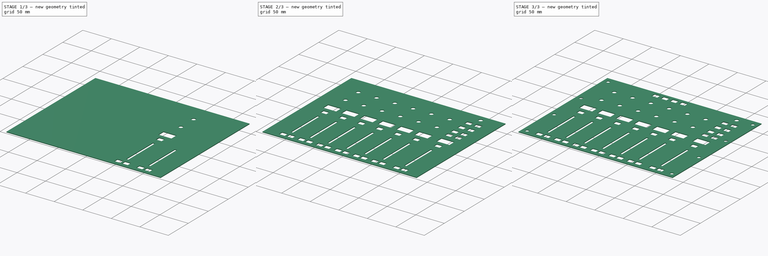
[diagram: build sequence overview — one tinted view per stage of 3, left to right]
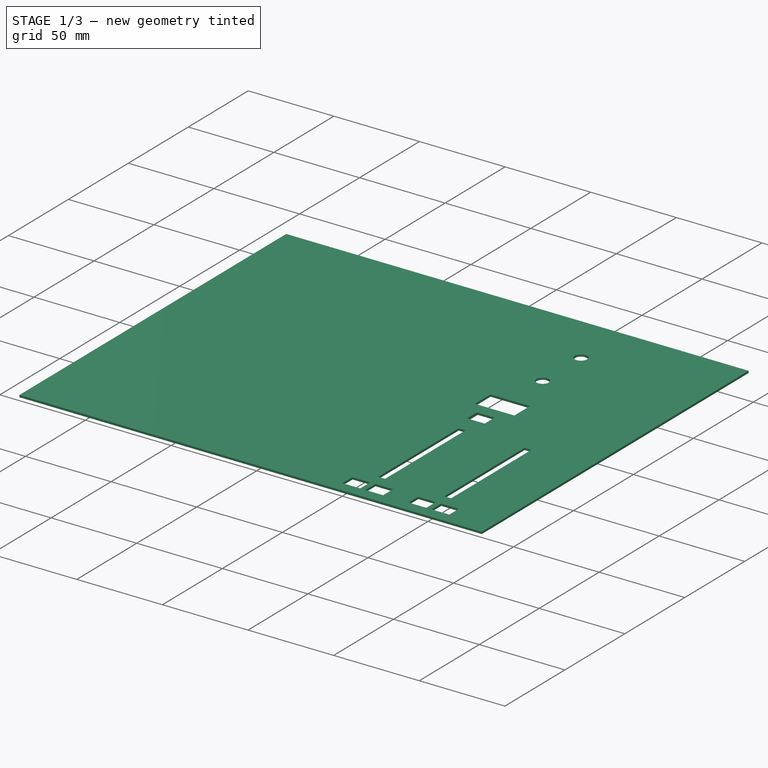
[diagram: stage 1 of 3 — iso view after this stage's code; geometry added in this stage tinted green]
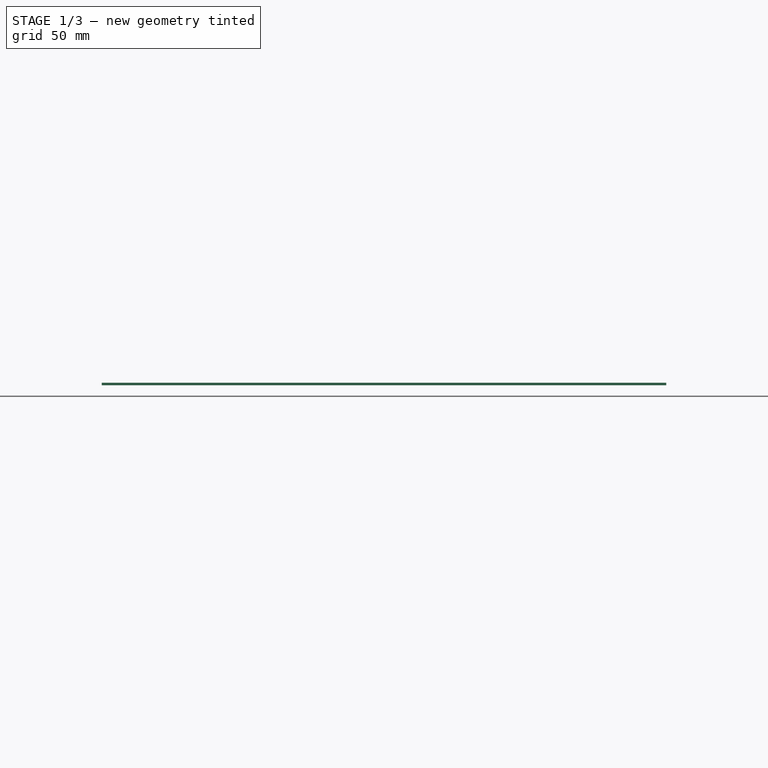
[diagram: stage 1 of 3 — front view after this stage's code; geometry added in this stage tinted green]
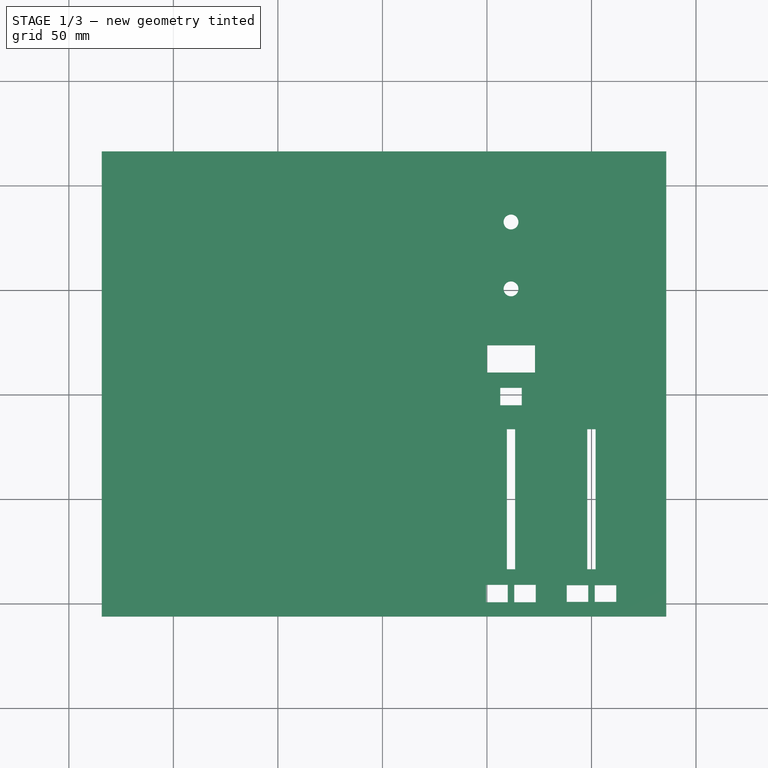
[diagram: stage 1 of 3 — top view after this stage's code; geometry added in this stage tinted green]
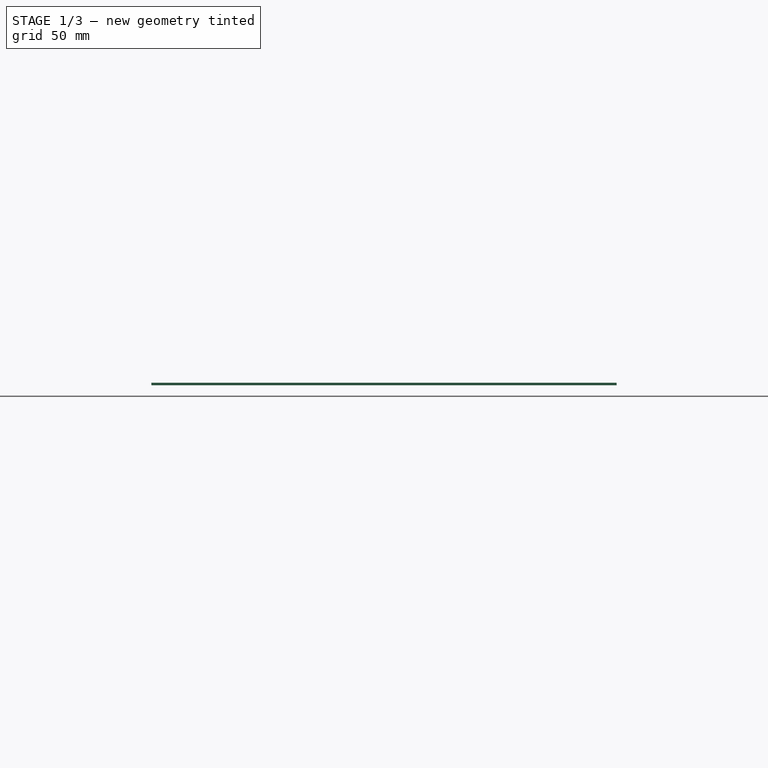
[diagram: stage 1 of 3 — right view after this stage's code; geometry added in this stage tinted green]
FCSTD DOCUMENT  (FreeCAD 0.18R16146 (Git))
Label: Faceplate
License: All rights reserved
LicenseURL: http://en.wikipedia.org/wiki/All_rights_reserved
objects: Sketcher::SketchObject×5, PartDesign::Pocket×3, PartDesign::Pad×1, PartDesign::LinearPattern×1, PartDesign::Hole×1, PartDesign::Body×1
note: 17 computed .brp shape members not serialized (recipe doc carries the construction recipe); baked Part::Feature solids carry a one-line shape summary decoded from their .brp

FEATURE [Sketcher::SketchObject] Sketch
  MapMode = 5
  Support = -> [XY_Plane]
  sketch-geometry (28):
    g0: LineSegment [constr] StartX=-215.25 StartY=162.4 StartZ=0 EndX=14.75 EndY=162.4 EndZ=0
    g1: LineSegment [constr] StartX=14.75 StartY=162.4 StartZ=0 EndX=14.75 EndY=-52.1 EndZ=0
    g2: LineSegment [constr] StartX=14.75 StartY=-52.1 StartZ=0 EndX=-215.25 EndY=-52.1 EndZ=0
    g3: LineSegment [constr] StartX=-215.25 StartY=-52.1 StartZ=0 EndX=-215.25 EndY=162.4 EndZ=0
    g4: LineSegment StartX=2 StartY=33.5 StartZ=0 EndX=-2 EndY=33.5 EndZ=0
    g5: LineSegment StartX=-2 StartY=33.5 StartZ=0 EndX=-2 EndY=-33.5 EndZ=0
    g6: LineSegment StartX=-2 StartY=-33.5 StartZ=0 EndX=2 EndY=-33.5 EndZ=0
    g7: LineSegment StartX=2 StartY=-33.5 StartZ=0 EndX=2 EndY=33.5 EndZ=0
    g8: LineSegment StartX=-11.85 StartY=-41.1 StartZ=0 EndX=-1.55 EndY=-41.1 EndZ=0
    g9: LineSegment StartX=-1.55 StartY=-41.1 StartZ=0 EndX=-1.55 EndY=-49.1 EndZ=0
    g10: LineSegment StartX=-1.55 StartY=-49.1 StartZ=0 EndX=-11.85 EndY=-49.1 EndZ=0
    g11: LineSegment StartX=-11.85 StartY=-49.1 StartZ=0 EndX=-11.85 EndY=-41.1 EndZ=0
    g12: LineSegment StartX=1.55 StartY=-41.1 StartZ=0 EndX=11.85 EndY=-41.1 EndZ=0
    g13: LineSegment StartX=11.85 StartY=-41.1 StartZ=0 EndX=11.85 EndY=-49.1 EndZ=0
    g14: LineSegment StartX=11.85 StartY=-49.1 StartZ=0 EndX=1.55 EndY=-49.1 EndZ=0
    g15: LineSegment StartX=1.55 StartY=-49.1 StartZ=0 EndX=1.55 EndY=-41.1 EndZ=0
    g16: GeomPoint X=-6.7 Y=-45.1 Z=0
    g17: GeomPoint X=6.7 Y=-45.1 Z=0
    g18: LineSegment [constr] StartX=-6.7 StartY=-45.1 StartZ=0 EndX=0 EndY=-45.1 EndZ=0
    g19: LineSegment [constr] StartX=6.7 StartY=-45.1 StartZ=0 EndX=0 EndY=-45.1 EndZ=0
    g20: LineSegment [constr] StartX=0 StartY=0 StartZ=0 EndX=0 EndY=-45.1 EndZ=0
    g21: LineSegment StartX=-234.25 StartY=166.4 StartZ=0 EndX=35.75 EndY=166.4 EndZ=0
    g22: LineSegment StartX=35.75 StartY=166.4 StartZ=0 EndX=35.75 EndY=-56.1 EndZ=0
    g23: LineSegment StartX=35.75 StartY=-56.1 StartZ=0 EndX=-234.25 EndY=-56.1 EndZ=0
    g24: LineSegment StartX=-234.25 StartY=-56.1 StartZ=0 EndX=-234.25 EndY=166.4 EndZ=0
    g25: LineSegment [constr] StartX=-215.25 StartY=-52.1 StartZ=0 EndX=-215.25 EndY=-56.1 EndZ=0
    g26: LineSegment [constr] StartX=14.75 StartY=-52.1 StartZ=0 EndX=14.75 EndY=-56.1 EndZ=0
    g27: LineSegment [constr] StartX=-215.25 StartY=162.4 StartZ=0 EndX=-215.25 EndY=166.4 EndZ=0
  constraints (77):
    c: Coincident(g0,g1)
    c: Coincident(g1,g2)
    c: Coincident(g2,g3)
    c: Coincident(g3,g0)
    c: Horizontal(g0)
    c: Horizontal(g2)
    c: Vertical(g1)
    c: Vertical(g3)
    c: Coincident(g4,g5)
    c: Coincident(g5,g6)
    c: Coincident(g6,g7)
    c: Coincident(g7,g4)
    c: Horizontal(g4)
    c: Horizontal(g6)
    c: Vertical(g5)
    c: Vertical(g7)
    c: Symmetric(g4,g6,g-1)
    c: DistanceY(g7,g7) = 67
    c: DistanceX(g4,g4) = 4
    c: DistanceX(g0,g0) = 230
    c: Coincident(g8,g9)
    c: Coincident(g9,g10)
    c: Coincident(g10,g11)
    c: Coincident(g11,g8)
    c: Horizontal(g8)
    c: Horizontal(g10)
    c: Vertical(g9)
    c: Vertical(g11)
    c: Coincident(g12,g13)
    c: Coincident(g13,g14)
    c: Coincident(g14,g15)
    c: Coincident(g15,g12)
    c: Horizontal(g12)
    c: Horizontal(g14)
    c: Vertical(g13)
    c: Vertical(g15)
    c: DistanceX(g12,g12) = 10.3
    c: DistanceY(g15,g15) = 8
    c: Equal(g8,g12)
    c: Equal(g15,g9)
    c: Symmetric(g12,g13,g17)
    c: Symmetric(g8,g9,g16)
    c: Coincident(g18,g16)
    c: PointOnObject(g18,g-2)
    c: Horizontal(g18)
    c: Coincident(g19,g17)
    c: Coincident(g19,g18)
    c: Horizontal(g19)
    c: Equal(g19,g18)
    c: DistanceY(g17,g-1) = 45.1
    c: DistanceX(g16,g17) = 13.4
    c: DistanceY(g1,g17) = 7
    c: Coincident(g20,g-1)
    c: Coincident(g20,g18)
    c: Coincident(g21,g22)
    c: Coincident(g22,g23)
    c: Coincident(g23,g24)
    c: Coincident(g24,g21)
    c: Horizontal(g21)
    c: Horizontal(g23)
    c: Vertical(g22)
    c: Vertical(g24)
    c: DistanceX(g0,g21) = 21
    c: DistanceX(g21,g0) = 19
    c: Coincident(g25,g2)
    c: Vertical(g25)
    c: Coincident(g26,g1)
    c: PointOnObject(g26,g23)
    c: Vertical(g26)
    c: Equal(g26,g25)
    c: Coincident(g27,g0)
    c: Vertical(g27)
    c: PointOnObject(g27,g21)
    c: Equal(g27,g25)
    c: DistanceY(g26,g26) = 4
    c: DistanceY(g24,g24) = 222.5
    c: DistanceX(g-1,g22) = 35.75
FEATURE [PartDesign::Pad] Pad
  Length = 1.2
  Length2 = 100
  Profile = -> Sketch
  Type = 0
FEATURE [Sketcher::SketchObject] Sketch001
  MapMode = 5
  Placement = pos=(0,0,1.2) rot=(0,0,1;0rad)
  Support = -> [Pad]
  sketch-geometry (34):
    g0: LineSegment StartX=-40.5 StartY=33.5 StartZ=0 EndX=-36.5 EndY=33.5 EndZ=0
    g1: LineSegment StartX=-36.5 StartY=33.5 StartZ=0 EndX=-36.5 EndY=-33.5 EndZ=0
    g2: LineSegment StartX=-36.5 StartY=-33.5 StartZ=0 EndX=-40.5 EndY=-33.5 EndZ=0
    g3: LineSegment StartX=-40.5 StartY=-33.5 StartZ=0 EndX=-40.5 EndY=33.5 EndZ=0
    g4: LineSegment StartX=-50 StartY=73.65 StartZ=0 EndX=-27 EndY=73.65 EndZ=0
    g5: LineSegment StartX=-27 StartY=73.65 StartZ=0 EndX=-27 EndY=60.65 EndZ=0
    g6: LineSegment StartX=-27 StartY=60.65 StartZ=0 EndX=-50 EndY=60.65 EndZ=0
    g7: LineSegment StartX=-50 StartY=60.65 StartZ=0 EndX=-50 EndY=73.65 EndZ=0
    g8: LineSegment StartX=-50.35 StartY=-40.95 StartZ=0 EndX=-40.05 EndY=-40.95 EndZ=0
    g9: LineSegment StartX=-40.05 StartY=-40.95 StartZ=0 EndX=-40.05 EndY=-49.25 EndZ=0
    g10: LineSegment StartX=-40.05 StartY=-49.25 StartZ=0 EndX=-50.35 EndY=-49.25 EndZ=0
    g11: LineSegment StartX=-50.35 StartY=-49.25 StartZ=0 EndX=-50.35 EndY=-40.95 EndZ=0
    g12: LineSegment StartX=-36.95 StartY=-40.95 StartZ=0 EndX=-26.65 EndY=-40.95 EndZ=0
    g13: LineSegment StartX=-26.65 StartY=-40.95 StartZ=0 EndX=-26.65 EndY=-49.25 EndZ=0
    g14: LineSegment StartX=-26.65 StartY=-49.25 StartZ=0 EndX=-36.95 EndY=-49.25 EndZ=0
    g15: LineSegment StartX=-36.95 StartY=-49.25 StartZ=0 EndX=-36.95 EndY=-40.95 EndZ=0
    g16: LineSegment [constr] StartX=-38.5 StartY=-45.1 StartZ=0 EndX=-38.5 EndY=0 EndZ=0
    g17: LineSegment [constr] StartX=-38.5 StartY=0 StartZ=0 EndX=-38.5 EndY=67.15 EndZ=0
    g18: LineSegment [constr] StartX=-38.5 StartY=67.15 StartZ=0 EndX=-38.5 EndY=49.15 EndZ=0
    g19: LineSegment [constr] StartX=-38.5 StartY=49.15 StartZ=0 EndX=-38.5 EndY=100.65 EndZ=0
    g20: LineSegment [constr] StartX=-38.5 StartY=100.65 StartZ=0 EndX=-38.5 EndY=132.65 EndZ=0
    g21: LineSegment [constr] StartX=-45.2 StartY=-45.1 StartZ=0 EndX=-38.5 EndY=-45.1 EndZ=0
    g22: LineSegment [constr] StartX=-38.5 StartY=-45.1 StartZ=0 EndX=-31.8 EndY=-45.1 EndZ=0
    g23: LineSegment [constr] StartX=-51.85 StartY=74.9 StartZ=0 EndX=-25.15 EndY=74.9 EndZ=0
    g24: LineSegment [constr] StartX=-25.15 StartY=74.9 StartZ=0 EndX=-25.15 EndY=55.7 EndZ=0
    g25: LineSegment [constr] StartX=-25.15 StartY=55.7 StartZ=0 EndX=-51.85 EndY=55.7 EndZ=0
    g26: LineSegment [constr] StartX=-51.85 StartY=55.7 StartZ=0 EndX=-51.85 EndY=74.9 EndZ=0
    g27: GeomPoint X=-38.5 Y=65.3 Z=0
    g28: Circle CenterX=-38.5 CenterY=132.65 CenterZ=0 NormalX=0 NormalY=0 NormalZ=1 AngleXU=0 Radius=3.55
    g29: Circle CenterX=-38.5 CenterY=100.65 CenterZ=0 NormalX=0 NormalY=0 NormalZ=1 AngleXU=0 Radius=3.55
    g30: LineSegment StartX=-43.65 StartY=53.3 StartZ=0 EndX=-33.35 EndY=53.3 EndZ=0
    g31: LineSegment StartX=-33.35 StartY=53.3 StartZ=0 EndX=-33.35 EndY=45 EndZ=0
    g32: LineSegment StartX=-33.35 StartY=45 StartZ=0 EndX=-43.65 EndY=45 EndZ=0
    g33: LineSegment StartX=-43.65 StartY=45 StartZ=0 EndX=-43.65 EndY=53.3 EndZ=0
  constraints (94):
    c: Coincident(g0,g1)
    c: Coincident(g1,g2)
    c: Coincident(g2,g3)
    c: Coincident(g3,g0)
    c: Horizontal(g0)
    c: Horizontal(g2)
    c: Vertical(g1)
    c: Vertical(g3)
    c: Coincident(g4,g5)
    c: Coincident(g5,g6)
    c: Coincident(g6,g7)
    c: Coincident(g7,g4)
    c: Horizontal(g4)
    c: Horizontal(g6)
    c: Vertical(g5)
    c: Vertical(g7)
    c: Coincident(g8,g9)
    c: Coincident(g9,g10)
    c: Coincident(g10,g11)
    c: Coincident(g11,g8)
    c: Horizontal(g8)
    c: Horizontal(g10)
    c: Vertical(g9)
    c: Vertical(g11)
    c: Coincident(g12,g13)
    c: Coincident(g13,g14)
    c: Coincident(g14,g15)
    c: Coincident(g15,g12)
    c: Horizontal(g12)
    c: Horizontal(g14)
    c: Vertical(g13)
    c: Vertical(g15)
    c: PointOnObject(g16,g-1)
    c: Vertical(g16)
    c: Coincident(g16,g17)
    c: Vertical(g17)
    c: Coincident(g17,g18)
    c: Vertical(g18)
    c: Coincident(g18,g19)
    c: Vertical(g19)
    c: Coincident(g19,g20)
    c: Vertical(g20)
    c: Coincident(g21,g16)
    c: Coincident(g21,g22)
    c: Horizontal(g22)
    c: Equal(g12,g8)
    c: Equal(g9,g15)
    c: Horizontal(g21)
    c: Equal(g21,g22)
    c: Symmetric(g12,g13,g22)
    c: Symmetric(g8,g9,g21)
    c: DistanceX(g12,g12) = 10.3
    c: DistanceX(g2,g2) = 4
    c: DistanceY(g1,g1) = 67
    c: DistanceY(g13,g13) = 8.3
    c: Symmetric(g0,g1,g16)
    c: DistanceX(g16,g-1) = 38.5
    c: DistanceX(g21,g22) = 13.4
    c: DistanceY(g16,g16) = 45.1
    c: DistanceX(g6,g6) = 23
    c: DistanceY(g5,g5) = 13
    c: Symmetric(g4,g5,g17)
    c: Coincident(g23,g24)
    c: Coincident(g24,g25)
    c: Coincident(g25,g26)
    c: Coincident(g26,g23)
    c: Horizontal(g23)
    c: Horizontal(g25)
    c: Vertical(g24)
    c: Vertical(g26)
    c: PointOnObject(g27,g17)
    c: Symmetric(g23,g24,g27)
    c: DistanceX(g23,g23) = 26.7
    c: DistanceY(g24,g24) = 19.2
    c: DistanceY(g17,g23) = 7.75
    c: Coincident(g28,g20)
    c: Coincident(g29,g19)
    c: Equal(g28,g29)
    c: Diameter(g29) = 7.1
    c: Coincident(g30,g31)
    c: Coincident(g31,g32)
    c: Coincident(g32,g33)
    c: Coincident(g33,g30)
    c: Horizontal(g30)
    c: Horizontal(g32)
    c: Vertical(g31)
    c: Vertical(g33)
    c: Equal(g13,g31)
    c: Symmetric(g30,g31,g18)
    c: DistanceY(g29,g28) = 32
    c: DistanceY(g4,g29) = 27
    c: DistanceY(g16,g31) = 45
    c: DistanceY(g18,g17) = 18
    c: Equal(g30,g12)
FEATURE [PartDesign::Pocket] Pocket  label="Aussparung1Kanal"
  BaseFeature = -> Pad
  Length = 5
  Length2 = 100
  Profile = -> Sketch001
  Type = 0
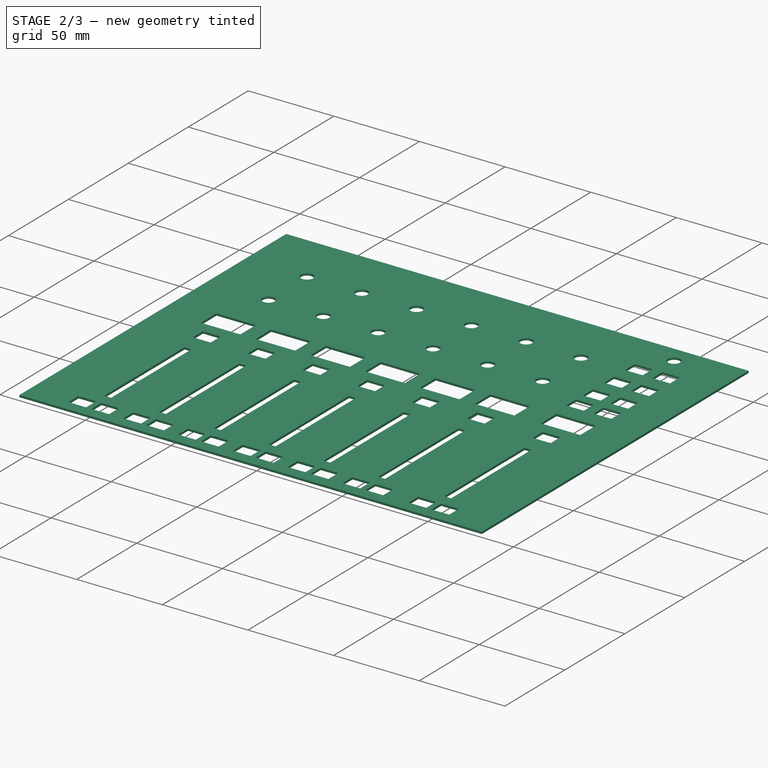
[diagram: stage 2 of 3 — iso view after this stage's code; geometry added in this stage tinted green]
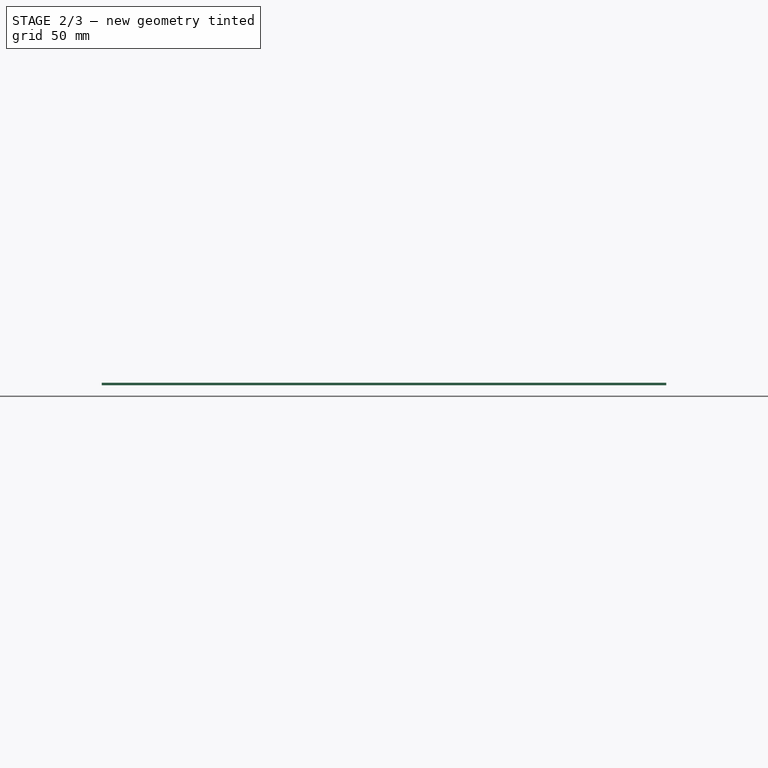
[diagram: stage 2 of 3 — front view after this stage's code; geometry added in this stage tinted green]
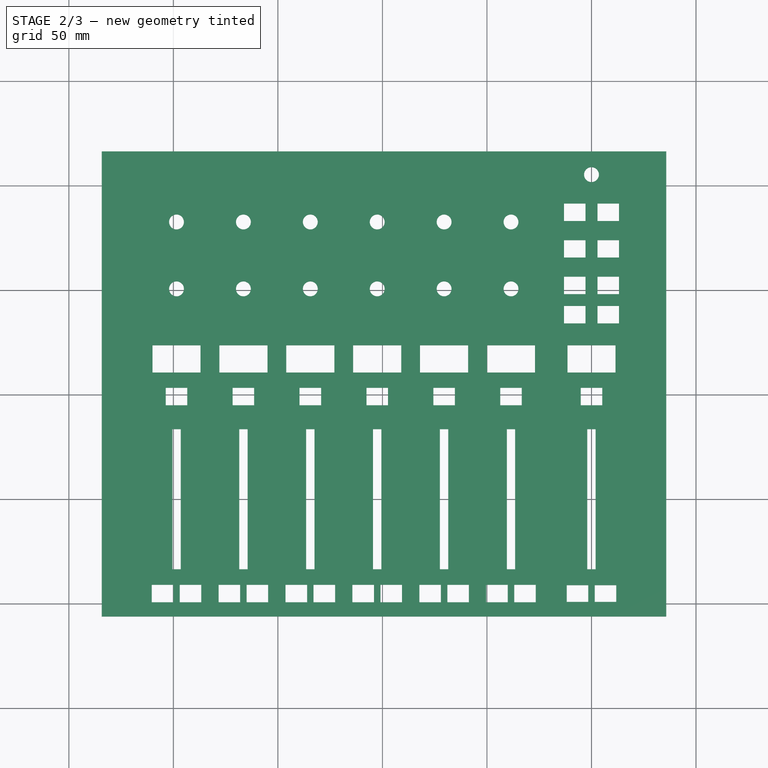
[diagram: stage 2 of 3 — top view after this stage's code; geometry added in this stage tinted green]
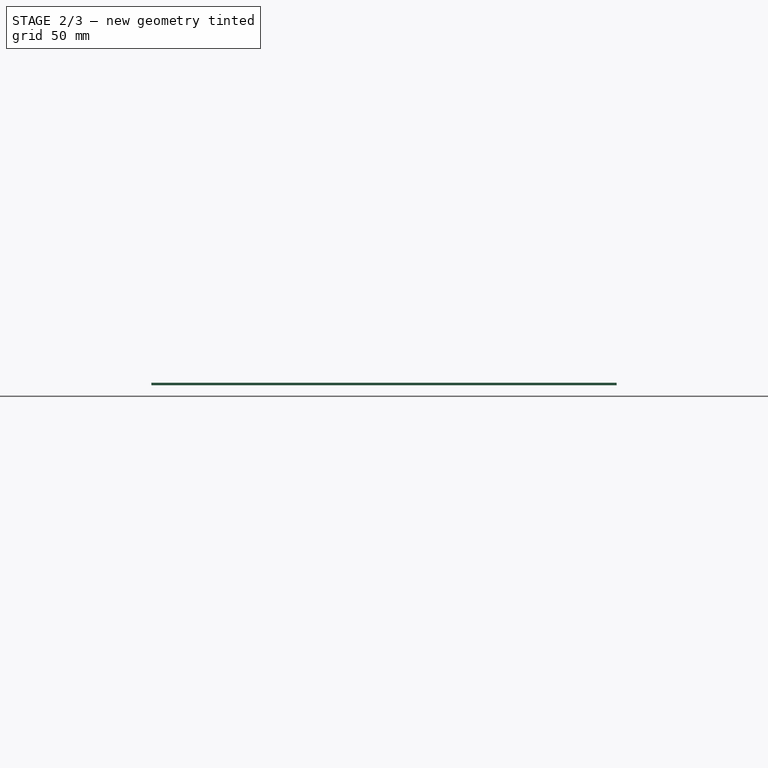
[diagram: stage 2 of 3 — right view after this stage's code; geometry added in this stage tinted green]
FEATURE [PartDesign::LinearPattern] LinearPattern  label="AussparungKanäle"
  BaseFeature = -> Pocket
  Direction = -> Sketch001 [H_Axis]
  Length = 160
  Occurrences = 6
  Originals = -> [Pocket]
  Reversed = true
FEATURE [Sketcher::SketchObject] Sketch002
  MapMode = 5
  Placement = pos=(0,0,1.2) rot=(0,0,1;0rad)
  Support = -> [LinearPattern]
  sketch-geometry (64):
    g0: LineSegment StartX=-11.5 StartY=73.65 StartZ=0 EndX=11.5 EndY=73.65 EndZ=0
    g1: LineSegment StartX=11.5 StartY=73.65 StartZ=0 EndX=11.5 EndY=60.65 EndZ=0
    g2: LineSegment StartX=11.5 StartY=60.65 StartZ=0 EndX=-11.5 EndY=60.65 EndZ=0
    g3: LineSegment StartX=-11.5 StartY=60.65 StartZ=0 EndX=-11.5 EndY=73.65 EndZ=0
    g4: LineSegment [constr] StartX=-13.35 StartY=74.9 StartZ=0 EndX=13.35 EndY=74.9 EndZ=0
    g5: LineSegment [constr] StartX=13.35 StartY=74.9 StartZ=0 EndX=13.35 EndY=55.64 EndZ=0
    g6: LineSegment [constr] StartX=13.35 StartY=55.64 StartZ=0 EndX=-13.35 EndY=55.64 EndZ=0
    g7: LineSegment [constr] StartX=-13.35 StartY=55.64 StartZ=0 EndX=-13.35 EndY=74.9 EndZ=0
    g8: GeomPoint X=0 Y=67.15 Z=0
    g9: GeomPoint X=0 Y=65.27 Z=0
    g10: LineSegment StartX=2.85 StartY=92.45 StartZ=0 EndX=13.15 EndY=92.45 EndZ=0
    g11: LineSegment StartX=13.15 StartY=92.45 StartZ=0 EndX=13.15 EndY=84.15 EndZ=0
    g12: LineSegment StartX=13.15 StartY=84.15 StartZ=0 EndX=2.85 EndY=84.15 EndZ=0
    g13: LineSegment StartX=2.85 StartY=84.15 StartZ=0 EndX=2.85 EndY=92.45 EndZ=0
    g14: LineSegment StartX=-13.15 StartY=92.45 StartZ=0 EndX=-2.85 EndY=92.45 EndZ=0
    g15: LineSegment StartX=-2.85 StartY=92.45 StartZ=0 EndX=-2.85 EndY=84.15 EndZ=0
    g16: LineSegment StartX=-2.85 StartY=84.15 StartZ=0 EndX=-13.15 EndY=84.15 EndZ=0
    g17: LineSegment StartX=-13.15 StartY=84.15 StartZ=0 EndX=-13.15 EndY=92.45 EndZ=0
    g18: LineSegment StartX=-13.15 StartY=106.45 StartZ=0 EndX=-2.85 EndY=106.45 EndZ=0
    g19: LineSegment StartX=-2.85 StartY=106.45 StartZ=0 EndX=-2.85 EndY=98.15 EndZ=0
    g20: LineSegment StartX=-2.85 StartY=98.15 StartZ=0 EndX=-13.15 EndY=98.15 EndZ=0
    g21: LineSegment StartX=-13.15 StartY=98.15 StartZ=0 EndX=-13.15 EndY=106.45 EndZ=0
    g22: LineSegment StartX=2.85 StartY=106.45 StartZ=0 EndX=13.15 EndY=106.45 EndZ=0
    g23: LineSegment StartX=13.15 StartY=106.45 StartZ=0 EndX=13.15 EndY=98.15 EndZ=0
    g24: LineSegment StartX=13.15 StartY=98.15 StartZ=0 EndX=2.85 EndY=98.15 EndZ=0
    g25: LineSegment StartX=2.85 StartY=98.15 StartZ=0 EndX=2.85 EndY=106.45 EndZ=0
    g26: LineSegment StartX=-13.15 StartY=123.95 StartZ=0 EndX=-2.85 EndY=123.95 EndZ=0
    g27: LineSegment StartX=-2.85 StartY=123.95 StartZ=0 EndX=-2.85 EndY=115.65 EndZ=0
    g28: LineSegment StartX=-2.85 StartY=115.65 StartZ=0 EndX=-13.15 EndY=115.65 EndZ=0
    g29: LineSegment StartX=-13.15 StartY=115.65 StartZ=0 EndX=-13.15 EndY=123.95 EndZ=0
    g30: LineSegment StartX=2.85 StartY=123.95 StartZ=0 EndX=13.15 EndY=123.95 EndZ=0
    g31: LineSegment StartX=13.15 StartY=123.95 StartZ=0 EndX=13.15 EndY=115.65 EndZ=0
    g32: LineSegment StartX=13.15 StartY=115.65 StartZ=0 EndX=2.85 EndY=115.65 EndZ=0
    g33: LineSegment StartX=2.85 StartY=115.65 StartZ=0 EndX=2.85 EndY=123.95 EndZ=0
    g34: LineSegment StartX=2.85 StartY=141.45 StartZ=0 EndX=13.15 EndY=141.45 EndZ=0
    g35: LineSegment StartX=13.15 StartY=141.45 StartZ=0 EndX=13.15 EndY=133.15 EndZ=0
    g36: LineSegment StartX=13.15 StartY=133.15 StartZ=0 EndX=2.85 EndY=133.15 EndZ=0
    g37: LineSegment StartX=2.85 StartY=133.15 StartZ=0 EndX=2.85 EndY=141.45 EndZ=0
    g38: GeomPoint X=-8 Y=119.8 Z=0
    g39: GeomPoint X=8 Y=119.8 Z=0
    g40: GeomPoint X=-8 Y=102.3 Z=0
    g41: GeomPoint X=8 Y=102.3 Z=0
    g42: GeomPoint X=-8 Y=88.3 Z=0
    g43: GeomPoint X=8 Y=88.3 Z=0
    g44: GeomPoint X=8 Y=137.3 Z=0
    g45: LineSegment [constr] StartX=0 StartY=88.3 StartZ=0 EndX=8 EndY=88.3 EndZ=0
    g46: Circle CenterX=0 CenterY=155.3 CenterZ=0 NormalX=0 NormalY=0 NormalZ=1 AngleXU=0 Radius=3.55
    g47: LineSegment [constr] StartX=-8 StartY=137.3 StartZ=0 EndX=0 EndY=137.3 EndZ=0
    g48: LineSegment StartX=-13.15 StartY=141.45 StartZ=0 EndX=-2.85 EndY=141.45 EndZ=0
    g49: LineSegment StartX=-2.85 StartY=141.45 StartZ=0 EndX=-2.85 EndY=133.15 EndZ=0
    g50: LineSegment StartX=-2.85 StartY=133.15 StartZ=0 EndX=-13.15 EndY=133.15 EndZ=0
    g51: LineSegment StartX=-13.15 StartY=133.15 StartZ=0 EndX=-13.15 EndY=141.45 EndZ=0
    g52: LineSegment StartX=-5.15 StartY=53.3 StartZ=0 EndX=5.15 EndY=53.3 EndZ=0
    g53: LineSegment StartX=5.15 StartY=53.3 StartZ=0 EndX=5.15 EndY=45 EndZ=0
    g54: LineSegment StartX=5.15 StartY=45 StartZ=0 EndX=-5.15 EndY=45 EndZ=0
    g55: LineSegment StartX=-5.15 StartY=45 StartZ=0 EndX=-5.15 EndY=53.3 EndZ=0
    g56: GeomPoint X=0 Y=49.15 Z=0
    g57: LineSegment [constr] StartX=-8 StartY=137.3 StartZ=0 EndX=-8 EndY=119.8 EndZ=0
    g58: LineSegment [constr] StartX=-8 StartY=119.8 StartZ=0 EndX=-8 EndY=102.3 EndZ=0
    g59: LineSegment [constr] StartX=-8 StartY=88.3 StartZ=0 EndX=-8 EndY=102.3 EndZ=0
    g60: LineSegment [constr] StartX=8 StartY=119.8 StartZ=0 EndX=8 EndY=102.3 EndZ=0
    g61: LineSegment [constr] StartX=8 StartY=102.3 StartZ=0 EndX=8 EndY=88.3 EndZ=0
    g62: LineSegment [constr] StartX=8 StartY=137.3 StartZ=0 EndX=8 EndY=119.8 EndZ=0
    g63: LineSegment [constr] StartX=-8 StartY=88.3 StartZ=0 EndX=0 EndY=88.3 EndZ=0
  constraints (165):
    c: Coincident(g0,g1)
    c: Coincident(g1,g2)
    c: Coincident(g2,g3)
    c: Coincident(g3,g0)
    c: Horizontal(g0)
    c: Horizontal(g2)
    c: Vertical(g1)
    c: Vertical(g3)
    c: DistanceX(g0,g0) = 23
    c: Coincident(g4,g5)
    c: Coincident(g5,g6)
    c: Coincident(g6,g7)
    c: Coincident(g7,g4)
    c: Horizontal(g4)
    c: Horizontal(g6)
    c: Vertical(g5)
    c: Vertical(g7)
    c: PointOnObject(g8,g-2)
    c: DistanceY(g5,g5) = 19.26
    c: PointOnObject(g9,g-2)
    c: DistanceX(g6,g6) = 26.7
    c: Symmetric(g0,g1,g8)
    c: Symmetric(g4,g5,g9)
    c: DistanceY(g8,g4) = 7.75
    c: DistanceY(g3,g3) = 13
    c: Coincident(g10,g11)
    c: Coincident(g11,g12)
    c: Coincident(g12,g13)
    c: Coincident(g13,g10)
    c: Horizontal(g10)
    c: Horizontal(g12)
    c: Vertical(g11)
    c: Vertical(g13)
    c: Coincident(g14,g15)
    c: Coincident(g15,g16)
    c: Coincident(g16,g17)
    c: Coincident(g17,g14)
    c: Horizontal(g14)
    c: Horizontal(g16)
    c: Vertical(g15)
    c: Vertical(g17)
    c: Coincident(g18,g19)
    c: Coincident(g19,g20)
    c: Coincident(g20,g21)
    c: Coincident(g21,g18)
    c: Horizontal(g18)
    c: Horizontal(g20)
    c: Vertical(g19)
    c: Vertical(g21)
    c: Coincident(g22,g23)
    c: Coincident(g23,g24)
    c: Coincident(g24,g25)
    c: Coincident(g25,g22)
    c: Horizontal(g22)
    c: Horizontal(g24)
    c: Vertical(g23)
    c: Vertical(g25)
    c: Coincident(g26,g27)
    c: Coincident(g27,g28)
    c: Coincident(g28,g29)
    c: Coincident(g29,g26)
    c: Horizontal(g26)
    c: Horizontal(g28)
    c: Vertical(g27)
    c: Vertical(g29)
    c: Coincident(g30,g31)
    c: Coincident(g31,g32)
    c: Coincident(g32,g33)
    c: Coincident(g33,g30)
    c: Horizontal(g30)
    c: Horizontal(g32)
    c: Vertical(g31)
    c: Vertical(g33)
    c: Coincident(g34,g35)
    c: Coincident(g35,g36)
    c: Coincident(g36,g37)
    c: Coincident(g37,g34)
    c: Horizontal(g34)
    c: Horizontal(g36)
    c: Vertical(g35)
    c: Vertical(g37)
    c: Equal(g30,g26)
    c: Equal(g26,g34)
    c: Equal(g34,g18)
    c: Equal(g18,g22)
    c: Equal(g22,g14)
    c: Equal(g14,g10)
    c: DistanceX(g34,g34) = 10.3
    c: Equal(g15,g19)
    c: Equal(g19,g27)
    c: Equal(g27,g35)
    c: Equal(g35,g31)
    c: Equal(g31,g23)
    c: Equal(g23,g11)
    c: DistanceY(g35,g35) = 8.3
    c: Symmetric(g34,g35,g44)
    c: Symmetric(g26,g27,g38)
    c: Symmetric(g18,g19,g40)
    c: Symmetric(g14,g15,g42)
    c: Symmetric(g10,g11,g43)
    c: Symmetric(g22,g23,g41)
    c: Symmetric(g30,g31,g39)
    c: Coincident(g45,g43)
    c: Horizontal(g45)
    c: PointOnObject(g46,g-2)
    c: Diameter(g46) = 7.1
    c: DistanceY(g39,g44) = 17.5
    c: DistanceY(g41,g39) = 17.5
    c: DistanceY(g45,g41) = 14
    c: PointOnObject(g47,g-2)
    c: Horizontal(g47)
    c: Coincident(g48,g49)
    c: Coincident(g49,g50)
    c: Coincident(g50,g51)
    c: Coincident(g51,g48)
    c: Horizontal(g48)
    c: Horizontal(g50)
    c: Vertical(g49)
    c: Vertical(g51)
    c: Equal(g48,g34)
    c: Equal(g49,g37)
    c: Symmetric(g48,g49,g47)
    c: Coincident(g52,g53)
    c: Coincident(g53,g54)
    c: Coincident(g54,g55)
    c: Coincident(g55,g52)
    c: Horizontal(g52)
    c: Horizontal(g54)
    c: Vertical(g53)
    c: Vertical(g55)
    c: Equal(g11,g53)
    c: PointOnObject(g56,g-2)
    c: Symmetric(g52,g53,g56)
    c: DistanceY(g-1,g53) = 45
    c: DistanceY(g47,g46) = 18
    c: DistanceY(g56,g8) = 18
    c: DistanceX(g42,g45) = 8
    c: DistanceX(g45,g45) = 8
    c: PointOnObject(g45,g-2)
    c: Coincident(g57,g47)
    c: Coincident(g57,g38)
    c: Coincident(g58,g38)
    c: Coincident(g58,g40)
    c: Vertical(g58)
    c: Coincident(g59,g42)
    c: Coincident(g59,g40)
    c: Vertical(g59)
    c: Vertical(g57)
    c: Coincident(g60,g41)
    c: Coincident(g60,g61)
    c: Coincident(g61,g43)
    c: Vertical(g60)
    c: Vertical(g61)
    c: Coincident(g39,g60)
    c: Coincident(g62,g44)
    c: Coincident(g62,g39)
    c: Vertical(g62)
    c: Equal(g57,g62)
    c: Equal(g58,g60)
    c: Equal(g59,g61)
    c: Coincident(g63,g45)
    c: Horizontal(g63)
    c: Coincident(g42,g63)
    c: DistanceY(g8,g11) = 17
    c: Equal(g52,g12)
FEATURE [PartDesign::Pocket] Pocket001  label="AussparungMA"
  BaseFeature = -> LinearPattern
  Length = 5
  Length2 = 100
  Profile = -> Sketch002
  Type = 0
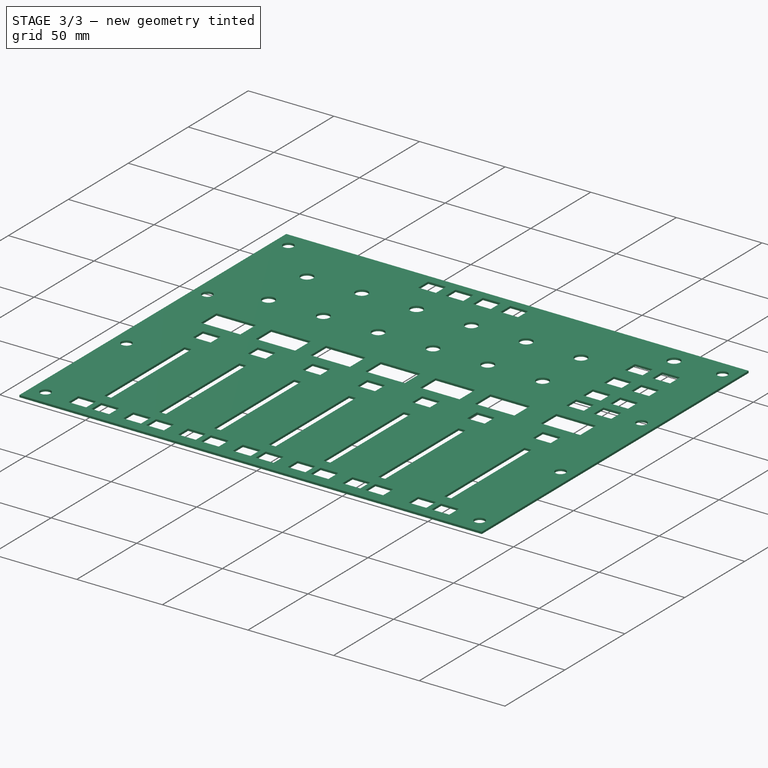
[diagram: stage 3 of 3 — iso view after this stage's code; geometry added in this stage tinted green]
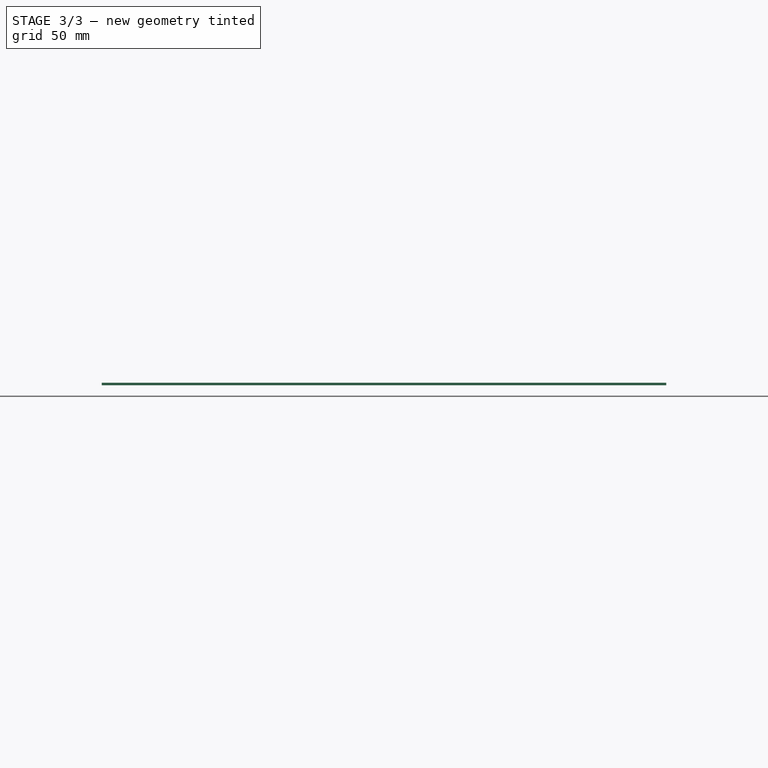
[diagram: stage 3 of 3 — front view after this stage's code; geometry added in this stage tinted green]
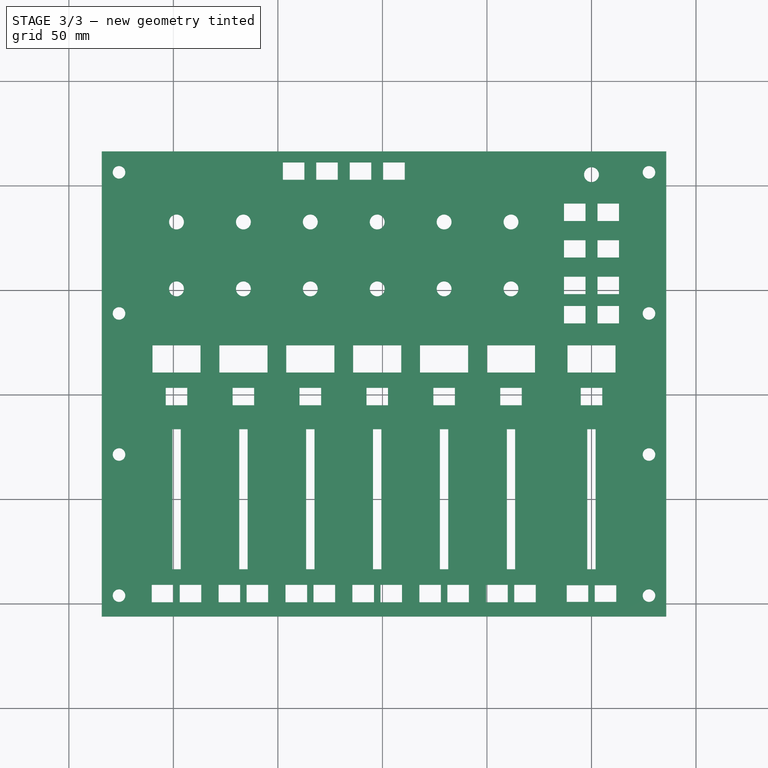
[diagram: stage 3 of 3 — top view after this stage's code; geometry added in this stage tinted green]
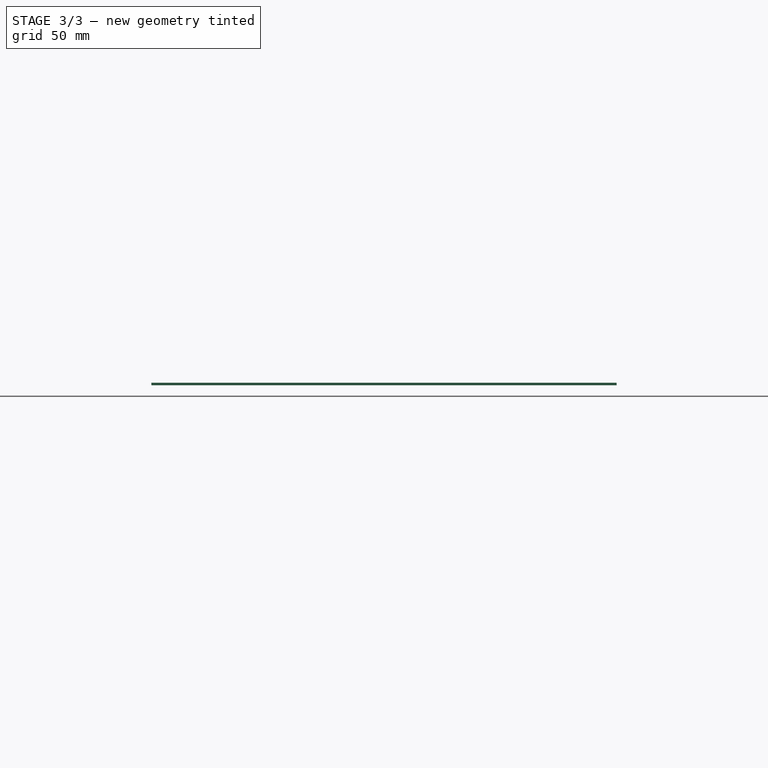
[diagram: stage 3 of 3 — right view after this stage's code; geometry added in this stage tinted green]
FEATURE [Sketcher::SketchObject] Sketch003  label="Montagelöcher"
  ExternalGeometry = -> [Pocket001]
  MapMode = 5
  Placement = pos=(0,0,1.2) rot=(0,0,1;0rad)
  Support = -> [Pocket001]
  sketch-geometry (22):
    g0: LineSegment [constr] StartX=-226 StartY=156.4 StartZ=0 EndX=-226 EndY=88.9 EndZ=0
    g1: LineSegment [constr] StartX=-226 StartY=88.9 StartZ=0 EndX=-226 EndY=21.4 EndZ=0
    g2: LineSegment [constr] StartX=-226 StartY=21.4 StartZ=0 EndX=-226 EndY=-46.1 EndZ=0
    g3: LineSegment [constr] StartX=27.5 StartY=-46.1 StartZ=0 EndX=27.5 EndY=21.4 EndZ=0
    g4: LineSegment [constr] StartX=27.5 StartY=21.4 StartZ=0 EndX=27.5 EndY=88.9 EndZ=0
    g5: LineSegment [constr] StartX=27.5 StartY=88.9 StartZ=0 EndX=27.5 EndY=156.4 EndZ=0
    g6: Circle CenterX=-226 CenterY=156.4 CenterZ=0 NormalX=0 NormalY=0 NormalZ=1 AngleXU=0 Radius=3
    g7: Circle CenterX=-226 CenterY=88.9 CenterZ=0 NormalX=0 NormalY=0 NormalZ=1 AngleXU=0 Radius=3
    g8: Circle CenterX=-226 CenterY=21.4 CenterZ=0 NormalX=0 NormalY=0 NormalZ=1 AngleXU=0 Radius=3
    g9: Circle CenterX=-226 CenterY=-46.1 CenterZ=0 NormalX=0 NormalY=0 NormalZ=1 AngleXU=0 Radius=3
    g10: Circle CenterX=27.5 CenterY=-46.1 CenterZ=0 NormalX=0 NormalY=0 NormalZ=1 AngleXU=0 Radius=3
    g11: Circle CenterX=27.5 CenterY=21.4 CenterZ=0 NormalX=0 NormalY=0 NormalZ=1 AngleXU=0 Radius=3
    g12: Circle CenterX=27.5 CenterY=88.9 CenterZ=0 NormalX=0 NormalY=0 NormalZ=1 AngleXU=0 Radius=3
    g13: Circle CenterX=27.5 CenterY=156.4 CenterZ=0 NormalX=0 NormalY=0 NormalZ=1 AngleXU=0 Radius=3
    g14: GeomPoint X=-234.25 Y=55.15 Z=0
    g15: LineSegment [constr] StartX=-226 StartY=88.9 StartZ=0 EndX=-226 EndY=55.15 EndZ=0
    g16: LineSegment [constr] StartX=-226 StartY=55.15 StartZ=0 EndX=-226 EndY=21.4 EndZ=0
    g17: LineSegment [constr] StartX=-226 StartY=55.15 StartZ=0 EndX=-234.25 EndY=55.15 EndZ=0
    g18: LineSegment [constr] StartX=-234.25 StartY=166.4 StartZ=0 EndX=-226 EndY=156.4 EndZ=0
    g19: LineSegment [constr] StartX=-234.25 StartY=-56.1 StartZ=0 EndX=-226 EndY=-46.1 EndZ=0
    g20: LineSegment [constr] StartX=27.5 StartY=156.4 StartZ=0 EndX=35.75 EndY=166.4 EndZ=0
    g21: LineSegment [constr] StartX=27.5 StartY=-46.1 StartZ=0 EndX=35.75 EndY=-56.1 EndZ=0
  constraints (53):
    c: Vertical(g0)
    c: Coincident(g0,g1)
    c: Coincident(g1,g2)
    c: Vertical(g2)
    c: Vertical(g3)
    c: Coincident(g3,g4)
    c: Vertical(g4)
    c: Coincident(g4,g5)
    c: Vertical(g5)
    c: Vertical(g1)
    c: Equal(g4,g5)
    c: Equal(g5,g3)
    c: Equal(g3,g2)
    c: Equal(g2,g1)
    c: Equal(g1,g0)
    c: Coincident(g6,g0)
    c: Coincident(g7,g0)
    c: Coincident(g8,g1)
    c: Coincident(g9,g2)
    c: Coincident(g11,g3)
    c: Coincident(g12,g4)
    c: Coincident(g13,g5)
    c: Coincident(g10,g3)
    c: Diameter(g6) = 6
    c: Equal(g6,g7)
    c: Equal(g7,g8)
    c: Equal(g8,g9)
    c: Equal(g9,g10)
    c: Equal(g10,g11)
    c: Equal(g11,g12)
    c: Equal(g12,g13)
    c: PointOnObject(g14,g-3)
    c: Vertical(g15)
    c: Coincident(g15,g16)
    c: Coincident(g15,g17)
    c: Horizontal(g17)
    c: Equal(g16,g15)
    c: Coincident(g17,g14)
    c: Coincident(g15,g7)
    c: Coincident(g16,g8)
    c: Coincident(g18,g-3)
    c: Coincident(g18,g6)
    c: Coincident(g19,g-3)
    c: Coincident(g19,g9)
    c: Equal(g19,g18)
    c: DistanceX(g17,g17) = 8.25
    c: Coincident(g20,g13)
    c: Coincident(g20,g-4)
    c: Equal(g20,g18)
    c: Coincident(g21,g10)
    c: Coincident(g21,g-4)
    c: Equal(g21,g20)
    c: DistanceY(g13,g20) = 10
FEATURE [PartDesign::Hole] Hole  label="Befestigung"
  BaseFeature = -> Pocket001
  Depth = 25
  DepthType = 0
  Diameter = 6
  DrillPoint = 1
  DrillPointAngle = 118
  HoleCutCountersinkAngle = 90
  HoleCutDepth = 0
  HoleCutDiameter = 0
  HoleCutType = 0
  ModelActualThread = false
  Profile = -> Sketch003
  Tapered = false
  TaperedAngle = 90
  ThreadAngle = 0
  ThreadClass = 0
  ThreadCutOffInner = 0
  ThreadCutOffOuter = 0
  ThreadDirection = 0
  ThreadFit = 0
  ThreadPitch = 0
  ThreadSize = 0
  ThreadType = 0
  Threaded = false
FEATURE [Sketcher::SketchObject] Sketch004
  MapMode = 5
  Placement = pos=(0,0,1.2) rot=(0,0,1;0rad)
  Support = -> [Hole]
  sketch-geometry (23):
    g0: LineSegment StartX=-147.65 StartY=161.15 StartZ=0 EndX=-137.35 EndY=161.15 EndZ=0
    g1: LineSegment StartX=-137.35 StartY=161.15 StartZ=0 EndX=-137.35 EndY=152.85 EndZ=0
    g2: LineSegment StartX=-137.35 StartY=152.85 StartZ=0 EndX=-147.65 EndY=152.85 EndZ=0
    g3: LineSegment StartX=-147.65 StartY=152.85 StartZ=0 EndX=-147.65 EndY=161.15 EndZ=0
    g4: LineSegment StartX=-131.65 StartY=161.15 StartZ=0 EndX=-121.35 EndY=161.15 EndZ=0
    g5: LineSegment StartX=-121.35 StartY=161.15 StartZ=0 EndX=-121.35 EndY=152.85 EndZ=0
    g6: LineSegment StartX=-121.35 StartY=152.85 StartZ=0 EndX=-131.65 EndY=152.85 EndZ=0
    g7: LineSegment StartX=-131.65 StartY=152.85 StartZ=0 EndX=-131.65 EndY=161.15 EndZ=0
    g8: LineSegment StartX=-115.65 StartY=161.15 StartZ=0 EndX=-105.35 EndY=161.15 EndZ=0
    g9: LineSegment StartX=-105.35 StartY=161.15 StartZ=0 EndX=-105.35 EndY=152.85 EndZ=0
    g10: LineSegment StartX=-105.35 StartY=152.85 StartZ=0 EndX=-115.65 EndY=152.85 EndZ=0
    g11: LineSegment StartX=-115.65 StartY=152.85 StartZ=0 EndX=-115.65 EndY=161.15 EndZ=0
    g12: LineSegment StartX=-99.65 StartY=161.15 StartZ=0 EndX=-89.35 EndY=161.15 EndZ=0
    g13: LineSegment StartX=-89.35 StartY=161.15 StartZ=0 EndX=-89.35 EndY=152.85 EndZ=0
    g14: LineSegment StartX=-89.35 StartY=152.85 StartZ=0 EndX=-99.65 EndY=152.85 EndZ=0
    g15: LineSegment StartX=-99.65 StartY=152.85 StartZ=0 EndX=-99.65 EndY=161.15 EndZ=0
    g16: GeomPoint X=-142.5 Y=157 Z=0
    g17: GeomPoint X=-126.5 Y=157 Z=0
    g18: GeomPoint X=-110.5 Y=157 Z=0
    g19: GeomPoint X=-94.5 Y=157 Z=0
    g20: LineSegment [constr] StartX=-142.5 StartY=157 StartZ=0 EndX=-126.5 EndY=157 EndZ=0
    g21: LineSegment [constr] StartX=-126.5 StartY=157 StartZ=0 EndX=-110.5 EndY=157 EndZ=0
    g22: LineSegment [constr] StartX=-110.5 StartY=157 StartZ=0 EndX=-94.5 EndY=157 EndZ=0
  constraints (58):
    c: Coincident(g0,g1)
    c: Coincident(g1,g2)
    c: Coincident(g2,g3)
    c: Coincident(g3,g0)
    c: Horizontal(g0)
    c: Horizontal(g2)
    c: Vertical(g1)
    c: Vertical(g3)
    c: Coincident(g4,g5)
    c: Coincident(g5,g6)
    c: Coincident(g6,g7)
    c: Coincident(g7,g4)
    c: Horizontal(g4)
    c: Horizontal(g6)
    c: Vertical(g5)
    c: Vertical(g7)
    c: Coincident(g8,g9)
    c: Coincident(g9,g10)
    c: Coincident(g10,g11)
    c: Coincident(g11,g8)
    c: Horizontal(g8)
    c: Horizontal(g10)
    c: Vertical(g9)
    c: Vertical(g11)
    c: Coincident(g12,g13)
    c: Coincident(g13,g14)
    c: Coincident(g14,g15)
    c: Coincident(g15,g12)
    c: Horizontal(g12)
    c: Horizontal(g14)
    c: Vertical(g13)
    c: Vertical(g15)
    c: DistanceX(g0,g0) = 10.3
    c: DistanceY(g1,g1) = 8.3
    c: Symmetric(g0,g1,g16)
    c: Symmetric(g4,g5,g17)
    c: Symmetric(g8,g9,g18)
    c: Symmetric(g12,g13,g19)
    c: Equal(g12,g8)
    c: Equal(g8,g4)
    c: Equal(g4,g0)
    c: Equal(g1,g5)
    c: Equal(g5,g9)
    c: Equal(g9,g13)
    c: Coincident(g20,g21)
    c: Coincident(g21,g22)
    c: Horizontal(g22)
    c: Horizontal(g21)
    c: Horizontal(g20)
    c: Equal(g22,g21)
    c: Equal(g21,g20)
    c: Coincident(g16,g20)
    c: Coincident(g17,g20)
    c: Coincident(g18,g21)
    c: Coincident(g19,g22)
    c: DistanceX(g22,g22) = 16
    c: DistanceX(g19,g-1) = 94.5
    c: DistanceY(g-1,g19) = 157
FEATURE [PartDesign::Pocket] Pocket002
  BaseFeature = -> Hole
  Length = 5
  Length2 = 100
  Profile = -> Sketch004
  Type = 0
FEATURE [PartDesign::Body] Body
  Group = -> [Sketch,Pad,Sketch001,Pocket,LinearPattern,Sketch002,Pocket001,Sketch003,Hole,Sketch004,Pocket002]
  Origin = -> Origin
  Tip = -> Pocket002
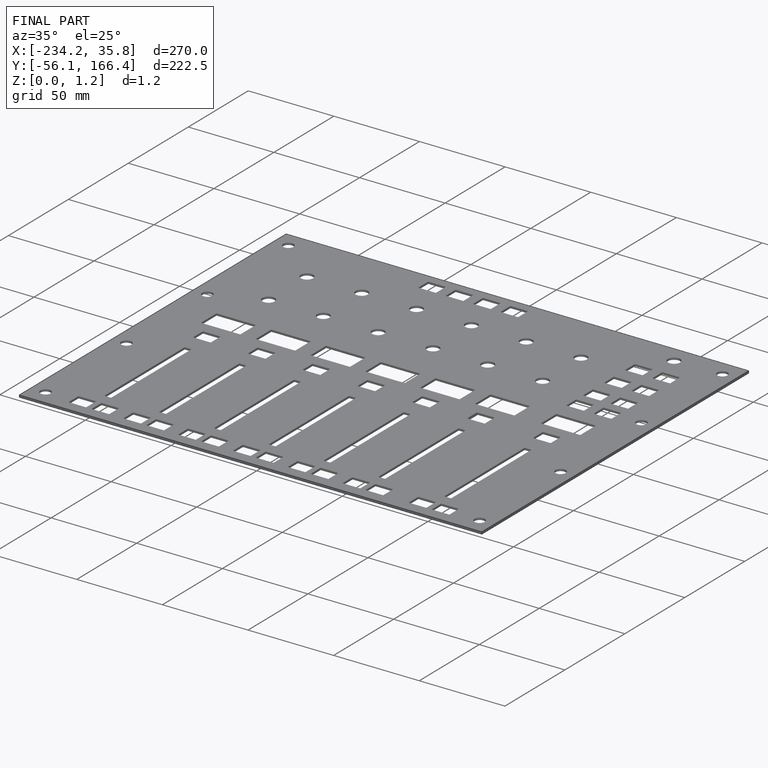
[diagram: finished part — iso view with bounding-box wireframe]
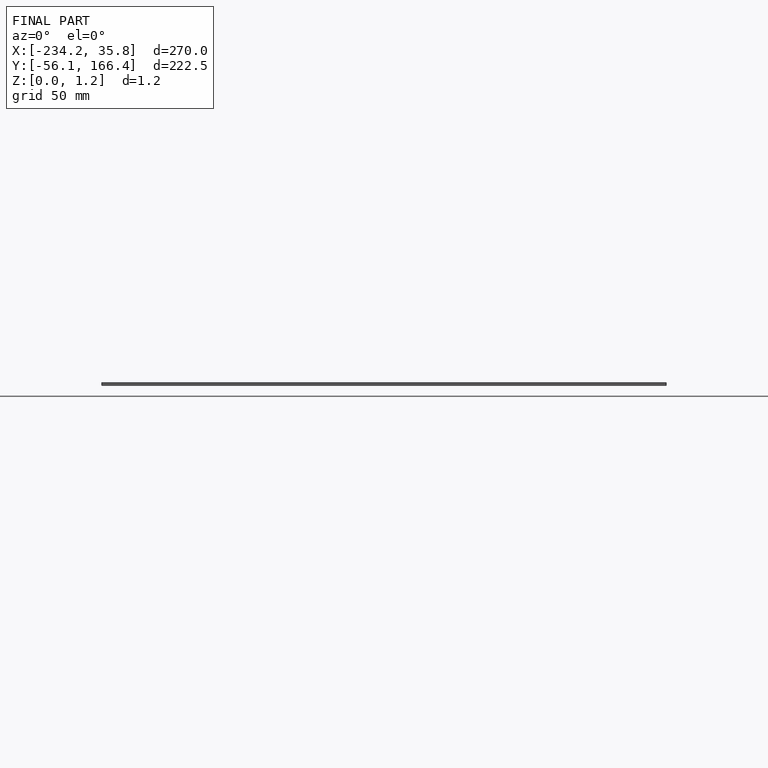
[diagram: finished part — front view with bounding-box wireframe]
